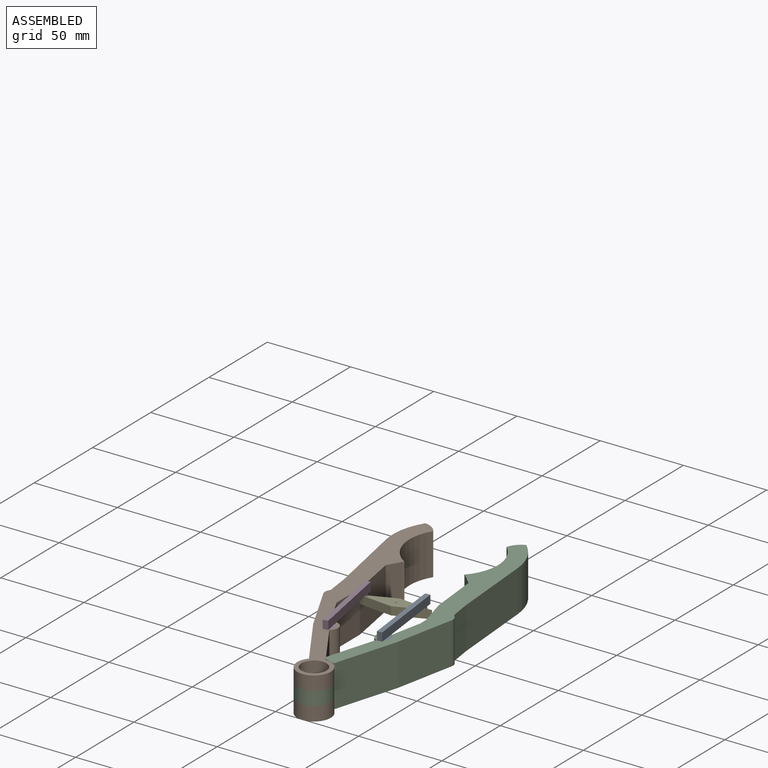
[diagram: assembled view]
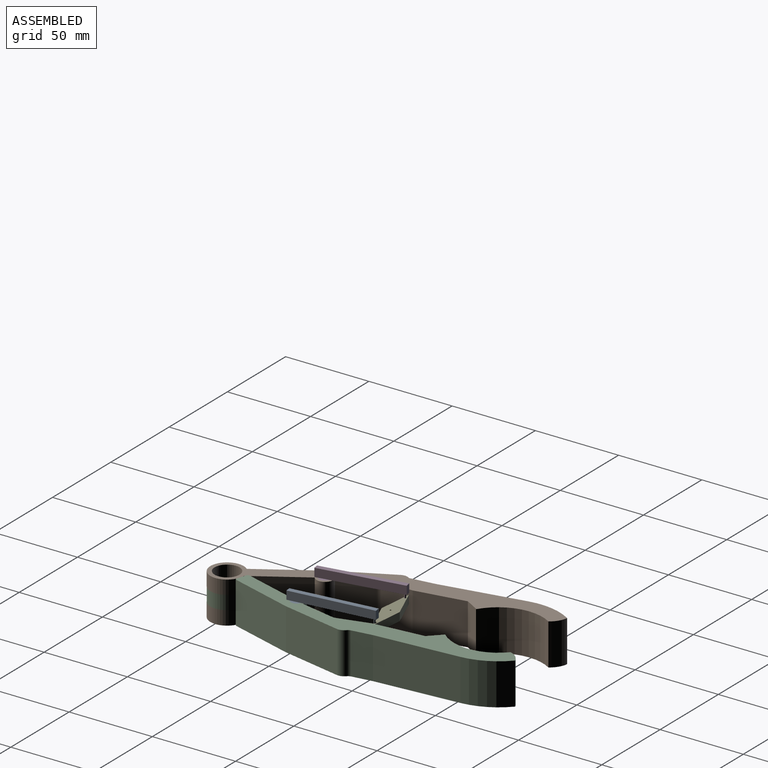
[diagram: assembled view, second angle]
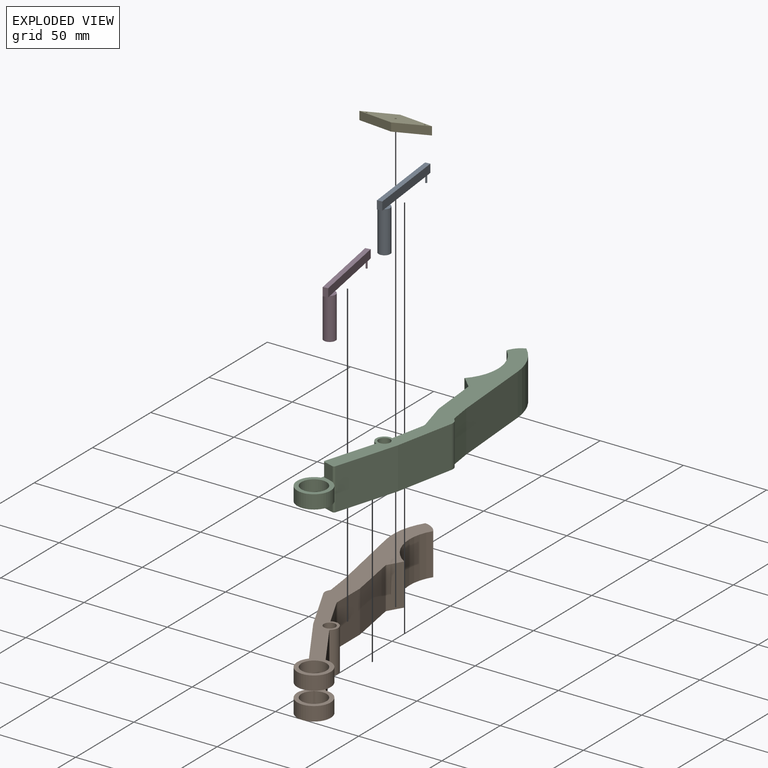
[diagram: exploded view]
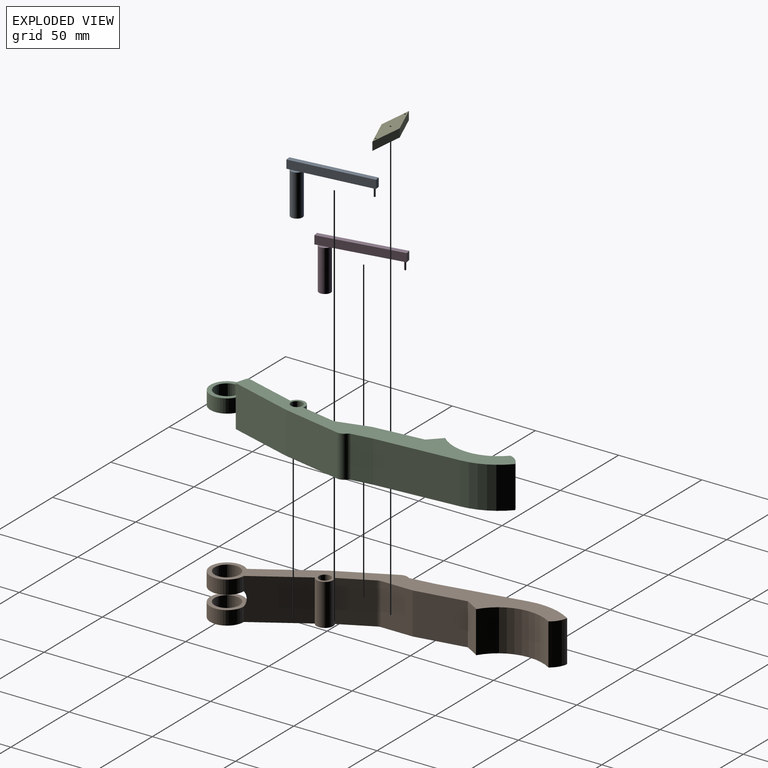
[diagram: exploded view, second angle]
ASSEMBLY  parts=5 mates=5
PART A: 13 faces, bbox 50x30x7 mm
  f0: plane 3x1.84mm, normal (0,1,0), area 4.8mm2, adj f4,f5,f6,f10
  f1: plane 41.84x3mm, normal (0,1,0), area 124mm2, adj f2,f5,f6,f7,f10
  f2: plane 5x3mm, normal (-1,0,0), area 15mm2, adj f1,f3,f5,f6
  f3: plane 50x3mm, normal (0,-1,0), area 150mm2, adj f2,f4,f5,f6
  f4: plane 5x3mm, normal (1,0,0), area 15mm2, adj f0,f3,f5,f6
  f5: plane 50x5mm, normal (0,0,1), area 250mm2, adj f0,f1,f2,f3,f4,f9
  f6: plane 50x5mm, normal (0,0,-1), area 250mm2, adj f0,f1,f2,f3,f4,f12
  f7: cylinder r=0.5mm len=5mm, axis (0,-1,0), area 15.7mm2, adj f1,f8
  f8: plane 1x1mm, normal (0,1,0), area 0.8mm2, adj f7
  f9: plane 6.32x2mm, normal (0,-1,0), area 9.1mm2, adj f5,f10
  f10: cylinder r=3.5mm len=25mm, axis (0,-1,0), area 549.8mm2, adj f0,f1,f9,f11,f12
  f11: plane 7x7mm, normal (0,1,0), area 38.5mm2, adj f10
  f12: plane 6.32x2mm, normal (0,-1,0), area 9.1mm2, adj f6,f10
PART B: 32 faces, bbox 66.8x178.6x25 mm
  f0: plane 10.27x2.37mm, normal (0.53,-0.85,0), area 6.3mm2, adj f1,f3,f11,f19,f23,f25
  f1: plane 1.97x0.92mm, normal (-0.85,-0.53,0), area 0.9mm2, adj f0,f3,f23
  f2: plane 31.44x25mm, normal (-0.89,-0.45,0), area 882.2mm2, adj f11,f12,f26,f28
  f3: plane 20.07x20.07mm, normal (0,0,-1), area 133.2mm2, adj f0,f1,f19,f22,f23
  f4: cylinder r=10.04mm len=20.07mm, axis (0,0,-1), area 458mm2, adj f5,f12,f20,f27
  f5: plane 29.65x25mm, normal (0.85,0.53,0), area 865.8mm2, adj f4,f11,f12,f13,f19,f23
  f6: plane 29.11x25mm, normal (0.98,0.17,0), area 739.1mm2, adj f11,f12,f14,f30
  f7: plane 49.08x25mm, normal (-0.98,-0.19,0), area 1250mm2, adj f8,f11,f12,f18
  f8: plane 25x14.67mm, normal (-0.99,-0.13,0), area 369.8mm2, adj f7,f11,f12,f28
  f9: plane 25x18.53mm, normal (0.89,0.45,0), area 520mm2, adj f11,f12,f13,f29
  f10: plane 25x18.36mm, normal (1,0,0), area 459.1mm2, adj f11,f12,f29,f30
  f11: plane 178.59x66.8mm, normal (0,0,1), area 1877.3mm2, adj f0,f2,f5,f6,f7,f8,f9,f10
  f12: plane 178.59x66.8mm, normal (0,0,-1), area 1877.3mm2, adj f2,f4,f5,f6,f7,f8,f9,f10
  f13: cylinder r=5mm len=25mm, axis (0,0,-1), area 387.6mm2, adj f5,f9,f11,f12
  f14: plane 25x8.03mm, normal (0.87,-0.5,0), area 231.8mm2, adj f6,f11,f12,f15
  f15: cylinder r=16.48mm len=25mm, axis (0,0,-1), area 19mm2, adj f11,f12,f14,f16
  f16: cylinder r=26.91mm len=37.36mm, axis (0,0,-1), area 1068mm2, adj f11,f12,f15,f17
  f17: cylinder r=11.69mm len=25mm, axis (0,0,-1), area 258.3mm2, adj f11,f12,f16,f18
  f18: cylinder r=36.91mm len=26.76mm, axis (0,0,-1), area 697.1mm2, adj f7,f11,f12,f17
  f19: cylinder r=10.04mm len=20.07mm, axis (0,0,-1), area 452.5mm2, adj f0,f3,f5,f11
  f20: plane 20.07x20.07mm, normal (0,0,1), area 133.2mm2, adj f4,f21,f23,f24,f27
  f21: cylinder r=7.5mm len=15mm, axis (0,0,-1), area 395.8mm2, adj f12,f20
  f22: cylinder r=7.5mm len=15mm, axis (0,0,-1), area 391.1mm2, adj f3,f11
  f23: cylinder r=6.67mm len=8.3mm, axis (0.85,0.53,0), area 61.7mm2, adj f0,f1,f3,f5,f20,f24,f25,f27
  f24: plane 1.97x0.92mm, normal (-0.85,-0.53,0), area 0.9mm2, adj f20,f23,f27
  f25: plane 34.59x25mm, normal (-0.85,-0.53,0), area 1018.6mm2, adj f0,f11,f12,f23,f26,f27
  f26: plane 25x0.02mm, normal (-0.53,0.85,0), area 0.6mm2, adj f2,f11,f12,f25
  f27: plane 10.37x2.37mm, normal (0.53,-0.85,0), area 6.3mm2, adj f4,f12,f20,f23,f24,f25
  f28: cylinder r=5mm len=25mm, axis (0,0,-1), area 144.9mm2, adj f2,f8,f11,f12
  f29: cylinder r=5mm len=25mm, axis (0,0,1), area 58.9mm2, adj f9,f10,f11,f12
  f30: cylinder r=5mm len=25mm, axis (0,0,-1), area 21.8mm2, adj f6,f10,f11,f12
  f31: cylinder r=3.5mm len=25mm, axis (0,0,-1), area 549.8mm2, adj f11,f12
PART C: 30 faces, bbox 66.8x178.6x25 mm
  f0: plane 25x12.4mm, normal (-0.99,-0.13,0), area 312.5mm2, adj f4,f5,f7,f22
  f1: plane 32.35x25mm, normal (-0.89,-0.45,0), area 907.6mm2, adj f4,f5,f21,f23
  f2: plane 29.65x25mm, normal (0.85,0.53,0), area 832mm2, adj f3,f4,f5,f10,f16,f17,f27,f28
  f3: cylinder r=10.04mm len=20.07mm, axis (0,0,-1), area 477mm2, adj f2,f16,f17,f18
  f4: plane 161.25x55.56mm, normal (0,0,1), area 1738.7mm2, adj f0,f1,f2,f6,f7,f8,f9,f10
  f5: plane 161.25x55.56mm, normal (0,0,-1), area 1738.7mm2, adj f0,f1,f2,f6,f7,f8,f9,f10
  f6: plane 29.11x25mm, normal (0.98,0.17,0), area 739.1mm2, adj f4,f5,f11,f25
  f7: plane 49.08x25mm, normal (-0.98,-0.19,0), area 1250mm2, adj f0,f4,f5,f15
  f8: plane 25x18.53mm, normal (0.89,0.45,0), area 520mm2, adj f4,f5,f10,f24
  f9: plane 25x18.36mm, normal (1,0,0), area 459.1mm2, adj f4,f5,f24,f25
  f10: cylinder r=5mm len=25mm, axis (0,0,-1), area 392.7mm2, adj f2,f4,f5,f8
  f11: plane 25x8.03mm, normal (0.87,-0.5,0), area 231.8mm2, adj f4,f5,f6,f12
  f12: cylinder r=16.48mm len=25mm, axis (0,0,-1), area 19mm2, adj f4,f5,f11,f13
  f13: cylinder r=26.91mm len=37.36mm, axis (0,0,-1), area 1068mm2, adj f4,f5,f12,f14
  f14: cylinder r=11.69mm len=25mm, axis (0,0,-1), area 258.3mm2, adj f4,f5,f13,f15
  f15: cylinder r=36.91mm len=26.76mm, axis (0,0,-1), area 697.1mm2, adj f4,f5,f7,f14
  f16: plane 22.2x20.07mm, normal (0,0,-1), area 142.5mm2, adj f2,f3,f18,f19,f28
  f17: plane 22.2x20.07mm, normal (0,0,1), area 142.5mm2, adj f2,f3,f18,f19,f27
  f18: plane 25x5.34mm, normal (0.53,-0.85,0), area 121.8mm2, adj f3,f4,f5,f16,f17,f26,f27,f28
  f19: cylinder r=7.5mm len=15mm, axis (0,0,-1), area 391.1mm2, adj f16,f17
  f20: plane 33.38x25mm, normal (-0.85,-0.53,0), area 984.1mm2, adj f4,f5,f21,f26
  f21: plane 25x0.02mm, normal (-0.53,0.85,0), area 0.6mm2, adj f1,f4,f5,f20
  f22: cylinder r=4.37mm len=25mm, axis (0,0,1), area 52.1mm2, adj f0,f4,f5,f23
  f23: cylinder r=5mm len=25mm, axis (0,0,1), area 126mm2, adj f1,f4,f5,f22
  f24: cylinder r=5mm len=25mm, axis (0,0,1), area 58.9mm2, adj f4,f5,f8,f9
  f25: cylinder r=5mm len=25mm, axis (0,0,-1), area 21.8mm2, adj f4,f5,f6,f9
  f26: cylinder r=1mm len=25mm, axis (0,0,1), area 39.3mm2, adj f4,f5,f18,f20
  f27: cylinder r=1mm len=8.3mm, axis (0,0,-1), area 13mm2, adj f2,f4,f17,f18
  f28: cylinder r=1mm len=8.4mm, axis (0,0,1), area 13.2mm2, adj f2,f5,f16,f18
  f29: cylinder r=3.5mm len=25mm, axis (0,0,1), area 549.8mm2, adj f4,f5
PART D: same geometry as A
PART E: 9 faces, bbox 10x5x40 mm
  f0: plane 20x5mm, normal (-0.97,0,0.24), area 103.1mm2, adj f1,f3,f4,f5
  f1: plane 20x5mm, normal (-0.97,0,-0.24), area 103.1mm2, adj f0,f2,f4,f5
  f2: plane 20x5mm, normal (0.97,0,-0.24), area 103.1mm2, adj f1,f3,f4,f5
  f3: plane 20x5mm, normal (0.97,0,0.24), area 103.1mm2, adj f0,f2,f4,f5
  f4: plane 40x10mm, normal (0,-1,0), area 197.6mm2, adj f0,f1,f2,f3,f6,f7,f8
  f5: plane 40x10mm, normal (0,1,0), area 197.6mm2, adj f0,f1,f2,f3,f6,f7,f8
  f6: cylinder r=0.5mm len=5mm, axis (0,1,0), area 15.7mm2, adj f4,f5
  f7: cylinder r=0.5mm len=5mm, axis (0,1,0), area 15.7mm2, adj f4,f5
  f8: cylinder r=0.5mm len=5mm, axis (0,1,0), area 15.7mm2, adj f4,f5
PLACE A rot(axis=(-0.62,0.55,-0.55),116.2deg) t=(172.24,246.6,70.96)mm
PLACE B t=(170.29,154.11,40.86)mm fixed
PLACE C rot(axis=(0.13,-0.99,0),180deg) t=(170.29,154.11,65.96)mm
PLACE D rot(axis=(-0.65,0.54,-0.54),114.3deg) t=(139.5,241.99,70.86)mm
PLACE E rot(axis=(0.52,0.6,0.6),124.9deg) t=(137.29,240.2,63.36)mm
MATE parallel E.f6 <-> B.f12  axis (0,0,-1) through (157.08,243.1,58.36)mm
MATE revolute D.f7 <-> E.f7  axis (0,0,-1) through (141.24,240.78,60.86)mm
MATE revolute A.f10 <-> C.f10  axis (0,0,-1) through (179.01,202.09,40.96)mm
MATE revolute D.f10 <-> B.f13  axis (0,0,-1) through (149.01,197.98,40.86)mm
MATE revolute C.f3 <-> B.f4  axis (0,0,-1) through (170.29,154.11,49.26)mm
